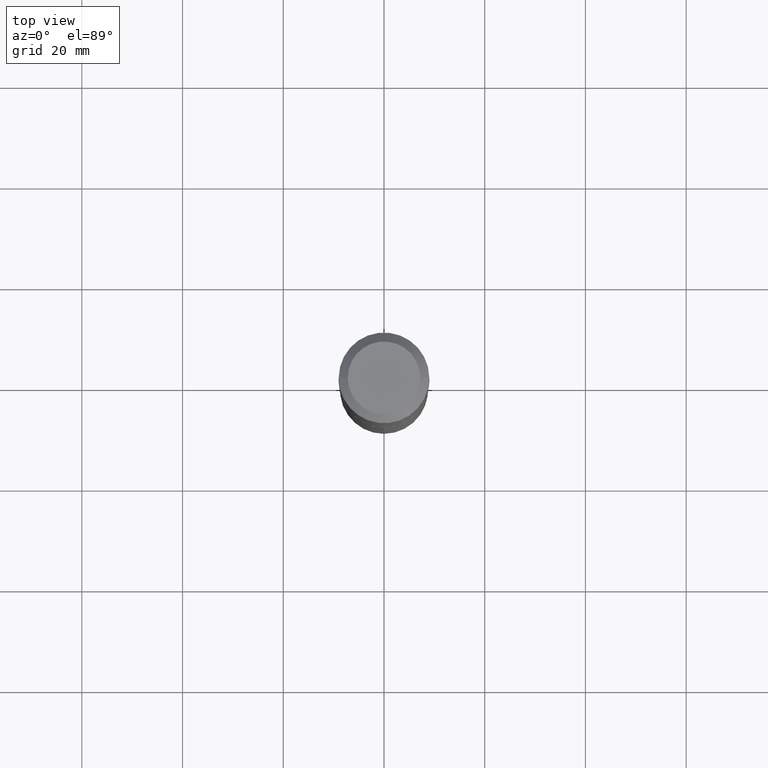
[diagram: clean part render]
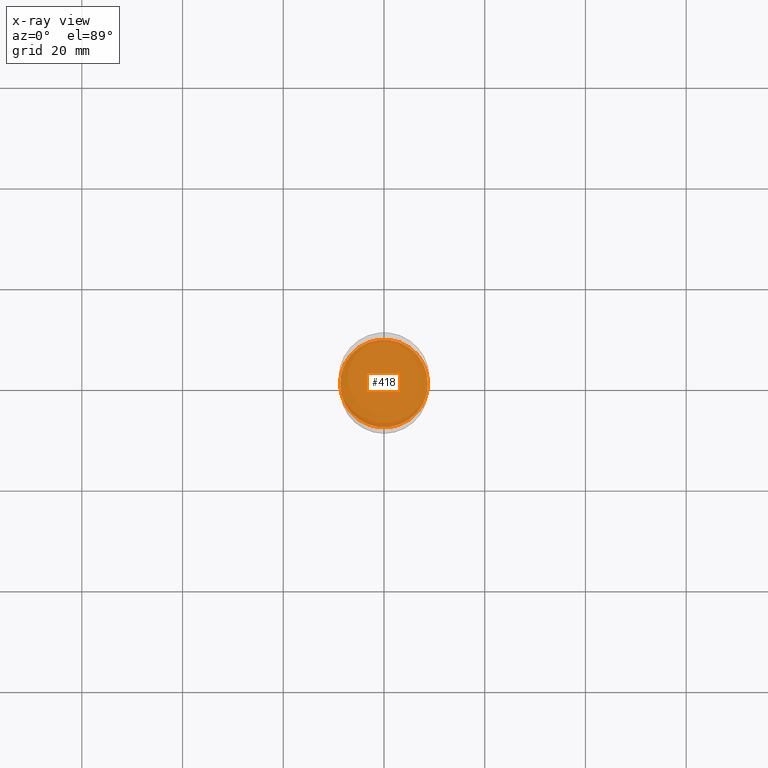
[diagram: x-ray — body ghosted, one internal face saturated and labeled with its STEP entity id]
A machine part, top view, then the same camera in x-ray: the body is ghosted and one INTERNAL B-rep face — a face not visible from any outside direction — is saturated and labeled: STEP entity #418.
In plain terms, the highlighted planar face has unit normal (-0, 0, 1).
Its self-contained STEP definition (entity closure, byte-faithful):
#5 = CARTESIAN_POINT ( 'NONE',  ( 6.496387883630815486E-29, -9.275120176636818437E-15, -2.656500000000000306 ) ) ;
#24 = VERTEX_POINT ( 'NONE', #29 ) ;
#26 = EDGE_CURVE ( 'NONE', #24, #320, #382, .T. ) ;
#29 = CARTESIAN_POINT ( 'NONE',  ( 0.3432499999999999996, -1.167202211575263040E-14, -2.656500000000000306 ) ) ;
#71 = CIRCLE ( 'NONE', #147, 0.3432499999999999996 ) ;
#89 = ORIENTED_EDGE ( 'NONE', *, *, #192, .F. ) ;
#118 = AXIS2_PLACEMENT_3D ( 'NONE', #443, #364, #477 ) ;
#147 = AXIS2_PLACEMENT_3D ( 'NONE', #5, #179, #335 ) ;
#162 = CARTESIAN_POINT ( 'NONE',  ( -0.3432499999999999996, -6.833533008966162167E-15, -2.656500000000000306 ) ) ;
#177 = DIRECTION ( 'NONE',  ( 1.000000000000000000, -6.982962677686265922E-15, 4.876176775795935793E-29 ) ) ;
#179 = DIRECTION ( 'NONE',  ( -2.445468806185136597E-29, 3.491481338843145583E-15, 1.000000000000000000 ) ) ;
#192 = EDGE_CURVE ( 'NONE', #320, #24, #71, .T. ) ;
#193 = FACE_OUTER_BOUND ( 'NONE', #298, .T. ) ;
#278 = ORIENTED_EDGE ( 'NONE', *, *, #26, .F. ) ;
#298 = EDGE_LOOP ( 'NONE', ( #278, #89 ) ) ;
#320 = VERTEX_POINT ( 'NONE', #162 ) ;
#329 = DIRECTION ( 'NONE',  ( -2.438088387897960049E-29, 3.491481338843145188E-15, 1.000000000000000000 ) ) ;
#335 = DIRECTION ( 'NONE',  ( 1.000000000000000000, -6.982962677686269077E-15, 0.000000000000000000 ) ) ;
#342 = PLANE ( 'NONE',  #489 ) ;
#364 = DIRECTION ( 'NONE',  ( -2.445468806185136597E-29, 3.491481338843145583E-15, 1.000000000000000000 ) ) ;
#371 = CARTESIAN_POINT ( 'NONE',  ( 3.543645748680764984E-29, -1.350361497353069374E-14, -2.656500000000000306 ) ) ;
#382 = CIRCLE ( 'NONE', #118, 0.3432499999999999996 ) ;
#418 = ADVANCED_FACE ( 'NONE', ( #193 ), #342, .F. ) ;
#443 = CARTESIAN_POINT ( 'NONE',  ( 6.496387883630815486E-29, -9.275120176636818437E-15, -2.656500000000000306 ) ) ;
#477 = DIRECTION ( 'NONE',  ( 1.000000000000000000, -6.982962677686269077E-15, 0.000000000000000000 ) ) ;
#489 = AXIS2_PLACEMENT_3D ( 'NONE', #371, #329, #177 ) ;